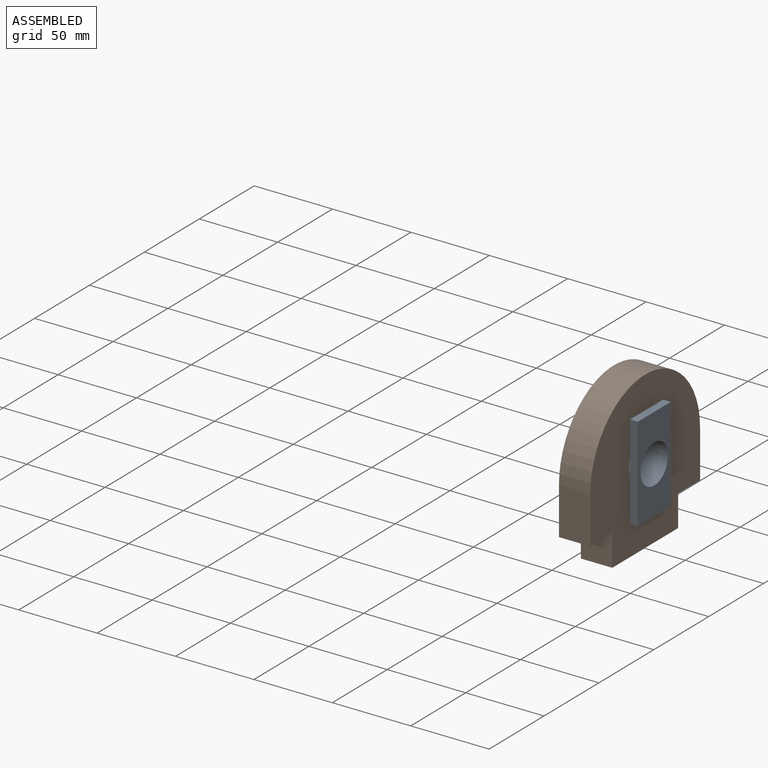
[diagram: assembled view]
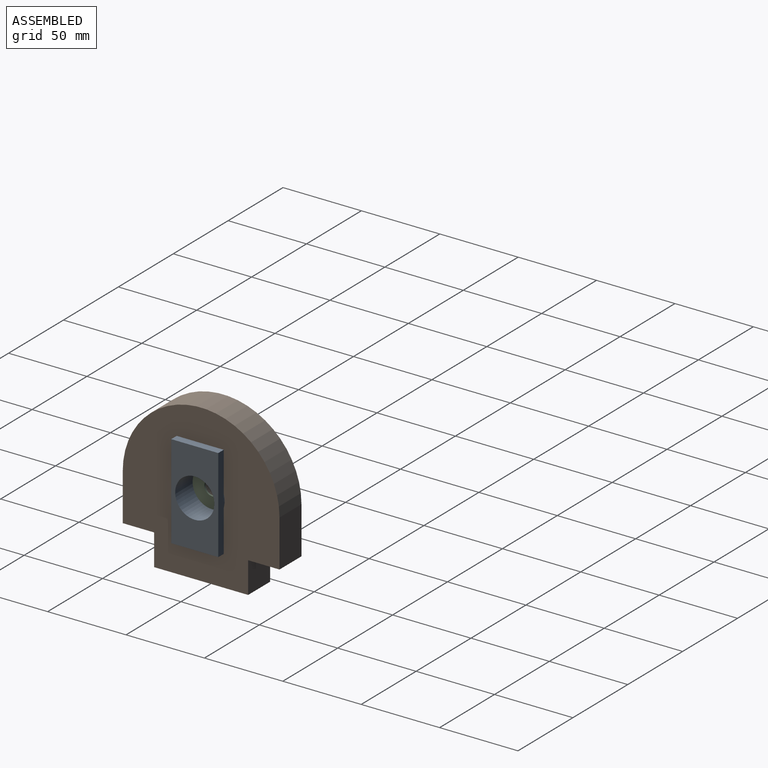
[diagram: assembled view, second angle]
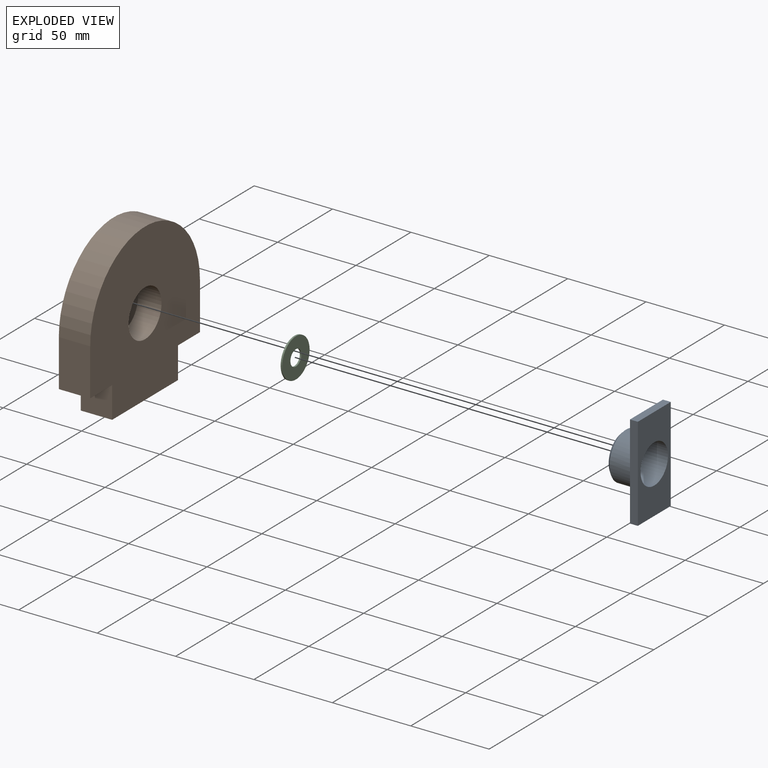
[diagram: exploded view]
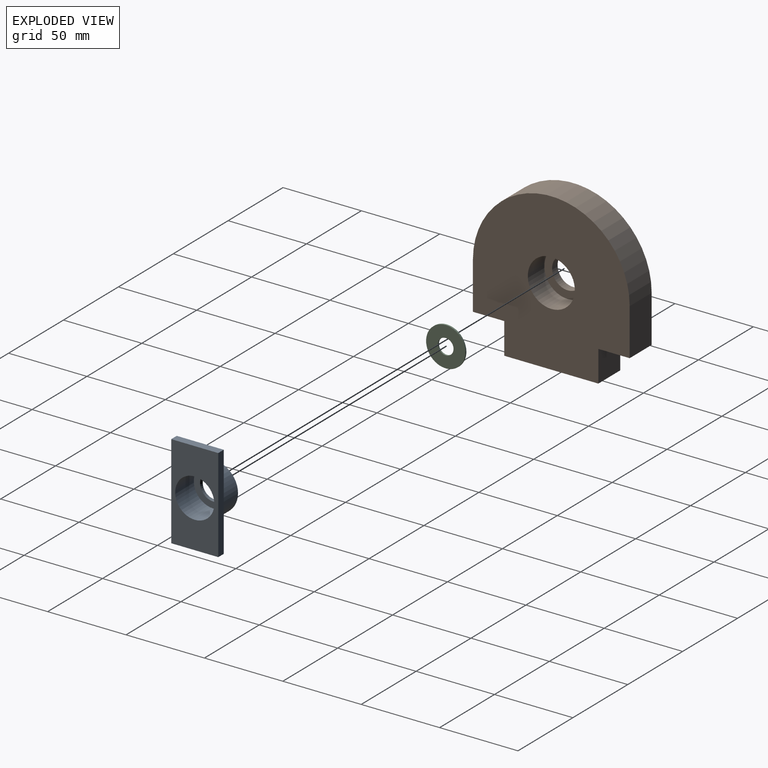
[diagram: exploded view, second angle]
ASSEMBLY  parts=3 mates=2
PART A: 14 faces, bbox 60x30x20 mm
  f0: plane 30x30mm, normal (0,0,1), area 546.6mm2, adj f2,f3,f4,f8
  f1: plane 30x5mm, normal (1,0,0), area 150mm2, adj f2,f4,f6,f7
  f2: plane 60x5mm, normal (0,1,0), area 300mm2, adj f0,f1,f3,f6,f7
  f3: plane 30x5mm, normal (-1,0,0), area 150mm2, adj f0,f2,f4,f7
  f4: plane 60x5mm, normal (0,-1,0), area 300mm2, adj f0,f1,f3,f6,f7
  f5: cylinder r=12.5mm len=25mm, axis (0,0,-1), area 1335.2mm2, adj f7,f9
  f6: plane 30x30mm, normal (0,0,1), area 546.6mm2, adj f1,f2,f4,f8
  f7: plane 60x30mm, normal (0,0,-1), area 1309.1mm2, adj f1,f2,f3,f4,f5
  f8: cylinder r=15mm len=30mm, axis (0,0,-1), area 1225.2mm2, adj f0,f6,f11
  f9: plane 25x25mm, normal (0,0,-1), area 263.9mm2, adj f5,f13
  f10: plane 26x26mm, normal (0,0,1), area 247.4mm2, adj f11,f12
  f11: cone r=13mm half-angle=45deg, axis (0,0,-1), area 248.8mm2, adj f8,f10
  f12: cone r=7.5mm half-angle=45deg, axis (0,0,1), area 151.1mm2, adj f10,f13
  f13: cone r=8.5mm half-angle=45deg, axis (0,0,-1), area 71.1mm2, adj f9,f12
PART B: 13 faces, bbox 20x100x100 mm
  f0: plane 60x20mm, normal (0,0,-1), area 1200mm2, adj f1,f2,f10,f12
  f1: plane 100x100mm, normal (1,0,0), area 7420.1mm2, adj f0,f4,f5,f6,f7,f9,f10,f11
  f2: plane 100x100mm, normal (-1,0,0), area 7812.8mm2, adj f0,f3,f4,f5,f6,f9,f10,f11
  f3: cylinder r=10mm len=20mm, axis (-1,0,0), area 314.2mm2, adj f2,f8
  f4: plane 30x20mm, normal (0,1,0), area 600mm2, adj f1,f2,f5,f9
  f5: cylinder r=50mm len=100mm, axis (-1,0,0), area 3141.6mm2, adj f1,f2,f4,f6
  f6: plane 30x20mm, normal (0,-1,0), area 600mm2, adj f1,f2,f5,f11
  f7: cylinder r=15mm len=30mm, axis (1,0,0), area 1413.7mm2, adj f1,f8
  f8: plane 30x30mm, normal (1,0,0), area 392.7mm2, adj f3,f7
  f9: plane 20x20mm, normal (0,0,-1), area 400mm2, adj f1,f2,f4,f10
  f10: plane 20x20mm, normal (0,1,0), area 400mm2, adj f0,f1,f2,f9
  f11: plane 20x20mm, normal (0,0,-1), area 400mm2, adj f1,f2,f6,f12
  f12: plane 20x20mm, normal (0,-1,0), area 400mm2, adj f0,f1,f2,f11
PART C: 4 faces, bbox 25x25x1 mm
  f0: cylinder r=5mm len=10mm, axis (0,0,-1), area 31.4mm2, adj f2,f3
  f1: cylinder r=12.5mm len=25mm, axis (0,0,-1), area 78.5mm2, adj f2,f3
  f2: plane 25x25mm, normal (0,0,1), area 412.3mm2, adj f0,f1
  f3: plane 25x25mm, normal (0,0,-1), area 412.3mm2, adj f0,f1
PLACE A rot(axis=(0.71,0,-0.71),180deg) t=(-17.36,-103.32,-88.36)mm
PLACE B t=(-43.16,96.68,31.64)mm
PLACE C rot(axis=(0,-1,0),90deg) t=(-33.26,-103.32,-88.36)mm
MATE slider C.f0 <-> A.f5  axis (1,0,0) through (-33.26,-103.32,-88.36)mm
MATE slider A.f12 <-> B.f3  axis (-1,0,0) through (-37.36,-103.32,-88.36)mm
